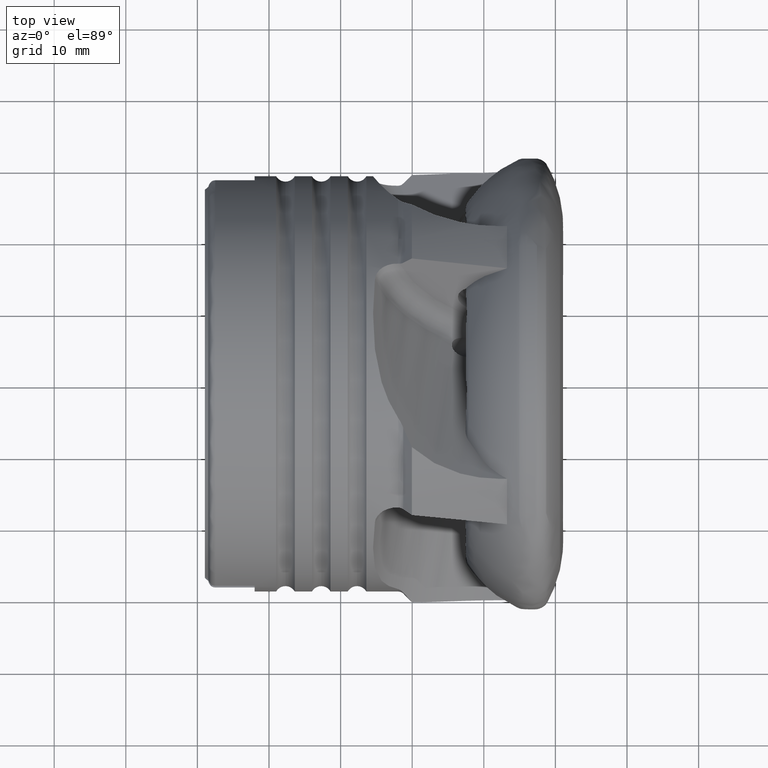
[diagram: clean part render]
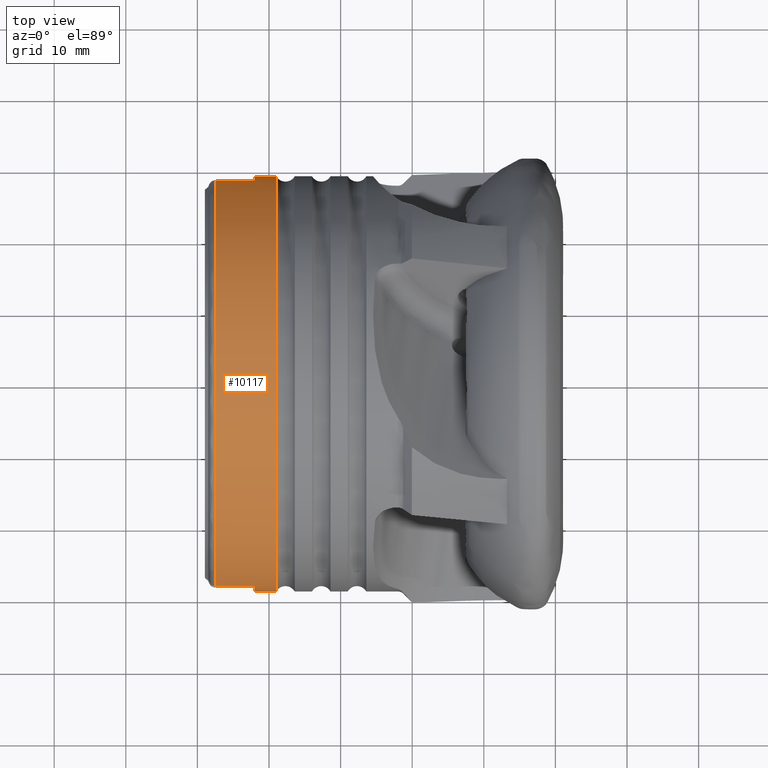
[diagram: same view with one face highlighted and labeled with its STEP entity id]
A machine part, top view. The second image highlights one B-rep face of the part: STEP entity #10117.
In plain terms, the highlighted cylindrical surface (partial cylindrical patch) has radius 29 mm, axis along (1, 0, -0).
Its self-contained STEP definition (entity closure, byte-faithful):
#324 = FACE_OUTER_BOUND ( 'NONE', #1462, .T. ) ;
#332 = CARTESIAN_POINT ( 'NONE',  ( -42.00000000000000000, 29.00000000000000400, 0.0000000000000000000 ) ) ;
#347 = CARTESIAN_POINT ( 'NONE',  ( -42.00000000000000000, 28.32948993540124100, 6.200000000000001100 ) ) ;
#361 = CARTESIAN_POINT ( 'NONE',  ( -42.00000000000000000, -29.00000000000000700, 3.551475717527324800E-015 ) ) ;
#564 = CARTESIAN_POINT ( 'NONE',  ( -38.99999999999998600, -29.00000000000000400, 3.551475717527324800E-015 ) ) ;
#582 = CARTESIAN_POINT ( 'NONE',  ( -39.00000000000000000, 28.99999999999999600, 0.0000000000000000000 ) ) ;
#602 = CARTESIAN_POINT ( 'NONE',  ( -47.49999999999997900, 28.32948993540136900, 6.200000000000002800 ) ) ;
#773 = CARTESIAN_POINT ( 'NONE',  ( -42.00000000000000000, -28.32948993540124900, 6.200000000000001100 ) ) ;
#781 = CARTESIAN_POINT ( 'NONE',  ( -47.49999999999997900, -28.32948993540125600, 6.200000000000002800 ) ) ;
#1462 = EDGE_LOOP ( 'NONE', ( #1953, #1928, #1884, #1906, #1889, #1886, #1888, #1952 ) ) ;
#1814 = VERTEX_POINT ( 'NONE', #602 ) ;
#1884 = ORIENTED_EDGE ( 'NONE', *, *, #3525, .F. ) ;
#1886 = ORIENTED_EDGE ( 'NONE', *, *, #3528, .F. ) ;
#1888 = ORIENTED_EDGE ( 'NONE', *, *, #3529, .T. ) ;
#1889 = ORIENTED_EDGE ( 'NONE', *, *, #3527, .F. ) ;
#1906 = ORIENTED_EDGE ( 'NONE', *, *, #3526, .F. ) ;
#1928 = ORIENTED_EDGE ( 'NONE', *, *, #3524, .T. ) ;
#1952 = ORIENTED_EDGE ( 'NONE', *, *, #3530, .F. ) ;
#1953 = ORIENTED_EDGE ( 'NONE', *, *, #3523, .F. ) ;
#1956 = VERTEX_POINT ( 'NONE', #582 ) ;
#1961 = VERTEX_POINT ( 'NONE', #564 ) ;
#2551 = VERTEX_POINT ( 'NONE', #781 ) ;
#2646 = VERTEX_POINT ( 'NONE', #773 ) ;
#2707 = VERTEX_POINT ( 'NONE', #361 ) ;
#2712 = VERTEX_POINT ( 'NONE', #332 ) ;
#2724 = VERTEX_POINT ( 'NONE', #347 ) ;
#3523 = EDGE_CURVE ( 'NONE', #2707, #2646, #4155, .T. ) ;
#3524 = EDGE_CURVE ( 'NONE', #2707, #1961, #4156, .T. ) ;
#3525 = EDGE_CURVE ( 'NONE', #1956, #1961, #4160, .T. ) ;
#3526 = EDGE_CURVE ( 'NONE', #2712, #1956, #4157, .T. ) ;
#3527 = EDGE_CURVE ( 'NONE', #2724, #2712, #4161, .T. ) ;
#3528 = EDGE_CURVE ( 'NONE', #1814, #2724, #4163, .T. ) ;
#3529 = EDGE_CURVE ( 'NONE', #1814, #2551, #4164, .T. ) ;
#3530 = EDGE_CURVE ( 'NONE', #2646, #2551, #4166, .T. ) ;
#4155 = CIRCLE ( 'NONE', #8491, 29.00000000000000400 ) ;
#4156 = LINE ( 'NONE', #9164, #4158 ) ;
#4157 = LINE ( 'NONE', #9175, #4162 ) ;
#4158 = VECTOR ( 'NONE', #9165, 1000.000000000000000 ) ;
#4160 = CIRCLE ( 'NONE', #8492, 29.00000000000000000 ) ;
#4161 = CIRCLE ( 'NONE', #8493, 29.00000000000000400 ) ;
#4162 = VECTOR ( 'NONE', #9172, 1000.000000000000000 ) ;
#4163 = LINE ( 'NONE', #9173, #4165 ) ;
#4164 = CIRCLE ( 'NONE', #8494, 29.00000000000000400 ) ;
#4165 = VECTOR ( 'NONE', #9174, 1000.000000000000000 ) ;
#4166 = LINE ( 'NONE', #9179, #4168 ) ;
#4168 = VECTOR ( 'NONE', #9180, 1000.000000000000000 ) ;
#8201 = DIRECTION ( 'NONE',  ( 1.000000000000000000, 1.224606353822377000E-016, -0.0000000000000000000 ) ) ;
#8203 = DIRECTION ( 'NONE',  ( -1.224606353822377000E-016, 1.000000000000000000, 0.0000000000000000000 ) ) ;
#8206 = CARTESIAN_POINT ( 'NONE',  ( 0.0000000000000000000, 0.0000000000000000000, 0.0000000000000000000 ) ) ;
#8428 = CYLINDRICAL_SURFACE ( 'NONE', #8773, 29.00000000000000400 ) ;
#8491 = AXIS2_PLACEMENT_3D ( 'NONE', #9169, #9170, #9171 ) ;
#8492 = AXIS2_PLACEMENT_3D ( 'NONE', #9176, #9177, #9178 ) ;
#8493 = AXIS2_PLACEMENT_3D ( 'NONE', #9181, #9182, #9183 ) ;
#8494 = AXIS2_PLACEMENT_3D ( 'NONE', #9184, #9185, #9186 ) ;
#8773 = AXIS2_PLACEMENT_3D ( 'NONE', #8206, #8201, #8203 ) ;
#9164 = CARTESIAN_POINT ( 'NONE',  ( 3.551358426084893700E-015, -29.00000000000000400, 3.551475717527324800E-015 ) ) ;
#9165 = DIRECTION ( 'NONE',  ( 1.000000000000000000, 1.224606353822377000E-016, -0.0000000000000000000 ) ) ;
#9169 = CARTESIAN_POINT ( 'NONE',  ( -42.00000000000000000, -5.143346686053983700E-015, 0.0000000000000000000 ) ) ;
#9170 = DIRECTION ( 'NONE',  ( -1.000000000000000000, -0.0000000000000000000, 0.0000000000000000000 ) ) ;
#9171 = DIRECTION ( 'NONE',  ( 0.0000000000000000000, 0.0000000000000000000, -1.000000000000000000 ) ) ;
#9172 = DIRECTION ( 'NONE',  ( 1.000000000000000000, 1.224606353822377000E-016, -0.0000000000000000000 ) ) ;
#9173 = CARTESIAN_POINT ( 'NONE',  ( -7.804259497799034500E-016, 28.32948993540124500, 6.199999999999982400 ) ) ;
#9174 = DIRECTION ( 'NONE',  ( 1.000000000000000000, 1.224606353822377000E-016, -0.0000000000000000000 ) ) ;
#9175 = CARTESIAN_POINT ( 'NONE',  ( -3.551358426084893700E-015, 29.00000000000000400, 0.0000000000000000000 ) ) ;
#9176 = CARTESIAN_POINT ( 'NONE',  ( -38.99999999999999300, -4.775964779907269700E-015, 0.0000000000000000000 ) ) ;
#9177 = DIRECTION ( 'NONE',  ( 1.000000000000000000, 1.224606353822377000E-016, -0.0000000000000000000 ) ) ;
#9178 = DIRECTION ( 'NONE',  ( -2.392722035830079000E-016, 1.000000000000000000, 0.0000000000000000000 ) ) ;
#9179 = CARTESIAN_POINT ( 'NONE',  ( 6.158068725307985200E-015, -28.32948993540124500, 6.199999999999982400 ) ) ;
#9180 = DIRECTION ( 'NONE',  ( -1.000000000000000000, -1.224606353822377000E-016, 0.0000000000000000000 ) ) ;
#9181 = CARTESIAN_POINT ( 'NONE',  ( -42.00000000000000000, -5.143346686053983700E-015, 0.0000000000000000000 ) ) ;
#9182 = DIRECTION ( 'NONE',  ( -1.000000000000000000, -0.0000000000000000000, 0.0000000000000000000 ) ) ;
#9183 = DIRECTION ( 'NONE',  ( 0.0000000000000000000, -4.440892098500626200E-015, -1.000000000000000000 ) ) ;
#9184 = CARTESIAN_POINT ( 'NONE',  ( -47.49999999999999300, -5.816880180656290400E-015, 0.0000000000000000000 ) ) ;
#9185 = DIRECTION ( 'NONE',  ( 1.000000000000000000, 1.224606353822377000E-016, -0.0000000000000000000 ) ) ;
#9186 = DIRECTION ( 'NONE',  ( -2.392722035830078500E-016, 1.000000000000000000, 0.0000000000000000000 ) ) ;
#10117 = ADVANCED_FACE ( 'NONE', ( #324 ), #8428, .T. ) ;